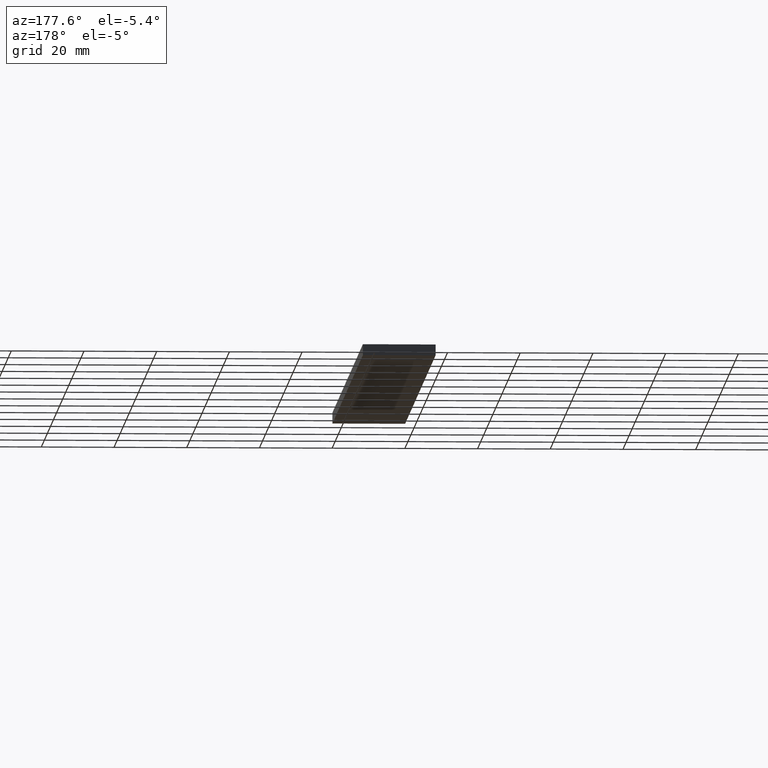
[diagram: clean part render]
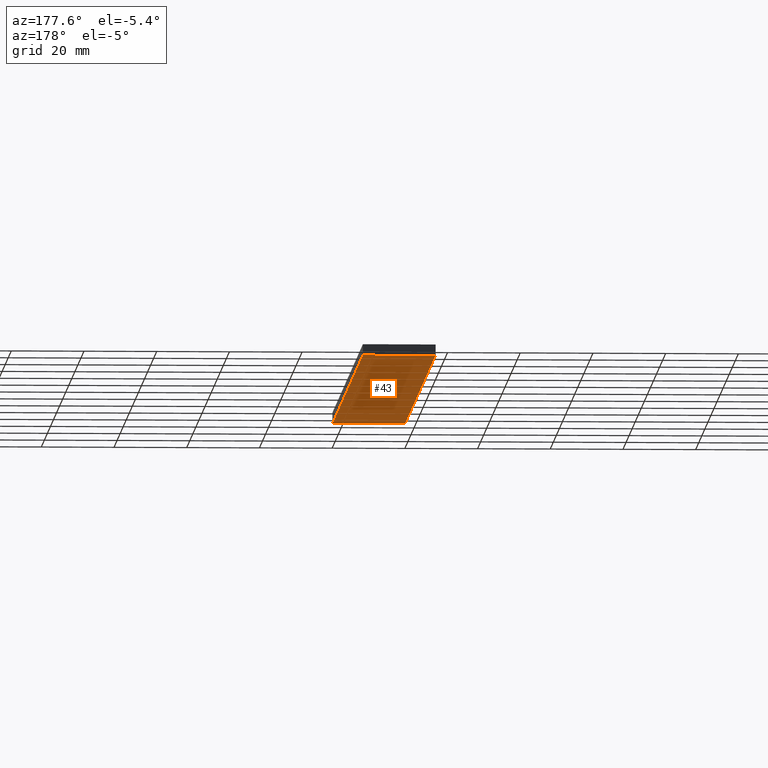
[diagram: same view with one face highlighted and labeled with its STEP entity id]
A machine part, auxiliary view. The second image highlights one B-rep face of the part: STEP entity #43.
In plain terms, the highlighted planar face has unit normal (0, 0, -1).
Its self-contained STEP definition (entity closure, byte-faithful):
#43=ADVANCED_FACE('',(#77),#76,.T.);
#76=PLANE('',#124);
#77=FACE_OUTER_BOUND('',#125,.T.);
#121=CARTESIAN_POINT('',(-3.63984348923E+01,-1.00000000000E+01,-1.85317700058E+01));
#122=DIRECTION('',(0.00000000000E+00,0.00000000000E+00,-1.00000000000E+00));
#123=DIRECTION('',(-1.00000000000E+00,0.00000000000E+00,0.00000000000E+00));
#124=AXIS2_PLACEMENT_3D('',#121,#122,#123);
#125=EDGE_LOOP('',(#148,#149,#150,#151));
#148=ORIENTED_EDGE('',*,*,#164,.F.);
#149=ORIENTED_EDGE('',*,*,#169,.F.);
#150=ORIENTED_EDGE('',*,*,#160,.T.);
#151=ORIENTED_EDGE('',*,*,#170,.T.);
#160=EDGE_CURVE('',#172,#173,#174,.T.);
#164=EDGE_CURVE('',#200,#201,#202,.T.);
#169=EDGE_CURVE('',#172,#200,#234,.T.);
#170=EDGE_CURVE('',#173,#201,#240,.T.);
#172=VERTEX_POINT('',#252);
#173=VERTEX_POINT('',#253);
#174=LINE('',#254,#255);
#200=VERTEX_POINT('',#268);
#201=VERTEX_POINT('',#269);
#202=LINE('',#270,#271);
#234=LINE('',#287,#288);
#240=LINE('',#290,#291);
#252=CARTESIAN_POINT('',(-5.83984348923E+01,2.00000000000E+02,-1.85317700058E+01));
#253=CARTESIAN_POINT('',(-3.83984348923E+01,2.00000000000E+02,-1.85317700058E+01));
#254=CARTESIAN_POINT('',(-5.83984348923E+01,2.00000000000E+02,-1.85317700058E+01));
#255=VECTOR('',#256,2.00000000000E+01);
#256=DIRECTION('',(1.00000000000E+00,0.00000000000E+00,0.00000000000E+00));
#268=CARTESIAN_POINT('',(-5.83984348923E+01,0.00000000000E+00,-1.85317700058E+01));
#269=CARTESIAN_POINT('',(-3.83984348923E+01,0.00000000000E+00,-1.85317700058E+01));
#270=CARTESIAN_POINT('',(-5.83984348923E+01,0.00000000000E+00,-1.85317700058E+01));
#271=VECTOR('',#272,2.00000000000E+01);
#272=DIRECTION('',(1.00000000000E+00,0.00000000000E+00,0.00000000000E+00));
#287=CARTESIAN_POINT('',(-5.83984348923E+01,2.00000000000E+02,-1.85317700058E+01));
#288=VECTOR('',#289,2.00000000000E+02);
#289=DIRECTION('',(0.00000000000E+00,-1.00000000000E+00,0.00000000000E+00));
#290=CARTESIAN_POINT('',(-3.83984348923E+01,2.00000000000E+02,-1.85317700058E+01));
#291=VECTOR('',#292,2.00000000000E+02);
#292=DIRECTION('',(0.00000000000E+00,-1.00000000000E+00,0.00000000000E+00));